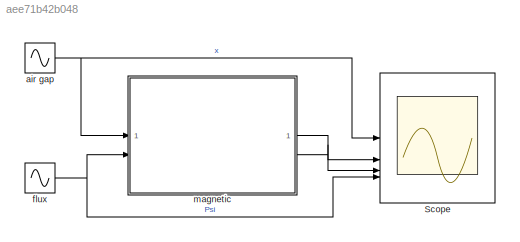
MODEL slx_aee71b42b048
KIND model
CONFIG AbsTol = auto
CONFIG EnableMultiTasking = off
CONFIG FixedStep = auto
CONFIG MaxStep = te/100
CONFIG MinStep = auto
CONFIG RelTol = 1e-3
CONFIG SampleTimeConstraint = Unconstrained
CONFIG SolverName = VariableStepAuto
CONFIG StartTime = 0.0
CONFIG StopTime = te
BLOCK [Scope] Scope
  Floating = off
  NumInputPorts = 4
  ScopeSpecificationString = Simulink.scopes.TimeScopeBlockCfg('CurrentConfiguration', extmgr.ConfigurationSet(extmgr.Configuration('Core','General UI',true),extmgr.Configuration('Core','Source UI',true),extmgr.Configuration('Sources','WiredSimulink',true),extmgr.Configuration('Visuals','Time Domain',true,'SerializedDisplays',{struct('MinYLimReal','-0.0025','MaxYLimReal','0.0225','YLabelReal','','MinYLimMag','0.00000','MaxYLi...<+3891ch>
BLOCK [Sin] air gap
  Amplitude = x0
  Bias = x0
  Frequency = w
  SampleTime = 0
BLOCK [Sin] flux
  Amplitude = Psi
  Frequency = w
  Phase = pi/2
  SampleTime = 0
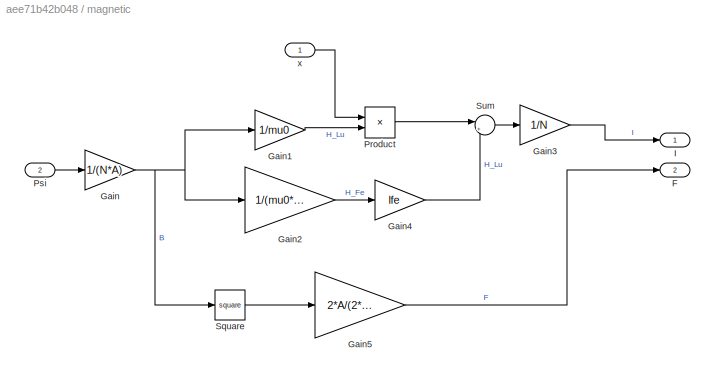
BLOCK [SubSystem] magnetic
BLOCK [Outport] magnetic/F
  Port = 2
BLOCK [Gain] magnetic/Gain
  Gain = 1/(N*A)
BLOCK [Gain] magnetic/Gain1
  Gain = 1/mu0
BLOCK [Gain] magnetic/Gain2
  Gain = 1/(mu0*mur)
BLOCK [Gain] magnetic/Gain3
  Gain = 1/N
BLOCK [Gain] magnetic/Gain4
  Gain = lfe
BLOCK [Gain] magnetic/Gain5
  Gain = 2*A/(2*mu0)
BLOCK [Outport] magnetic/I
BLOCK [Product] magnetic/Product
BLOCK [Inport] magnetic/Psi
  Port = 2
BLOCK [Math] magnetic/Square
  Operator = square
BLOCK [Sum] magnetic/Sum
  Inputs = |++
BLOCK [Inport] magnetic/x
NET air gap:1 -> Scope:1, magnetic:1
NET flux:1 -> Scope:4, magnetic:2
LINE magnetic/Gain1:1 -> magnetic/Product:2
LINE magnetic/Gain2:1 -> magnetic/Gain4:1
LINE magnetic/Gain3:1 -> magnetic/I:1
LINE magnetic/Gain4:1 -> magnetic/Sum:2
LINE magnetic/Gain5:1 -> magnetic/F:1
NET magnetic/Gain:1 -> magnetic/Gain1:1, magnetic/Gain2:1, magnetic/Square:1
LINE magnetic/Product:1 -> magnetic/Sum:1
LINE magnetic/Psi:1 -> magnetic/Gain:1
LINE magnetic/Square:1 -> magnetic/Gain5:1
LINE magnetic/Sum:1 -> magnetic/Gain3:1
LINE magnetic/x:1 -> magnetic/Product:1
LINE magnetic:1 -> Scope:2
LINE magnetic:2 -> Scope:3
note: NET lines group one-source signal fan-out (src -> all destinations, sorted); 1:1 wires keep LINE
